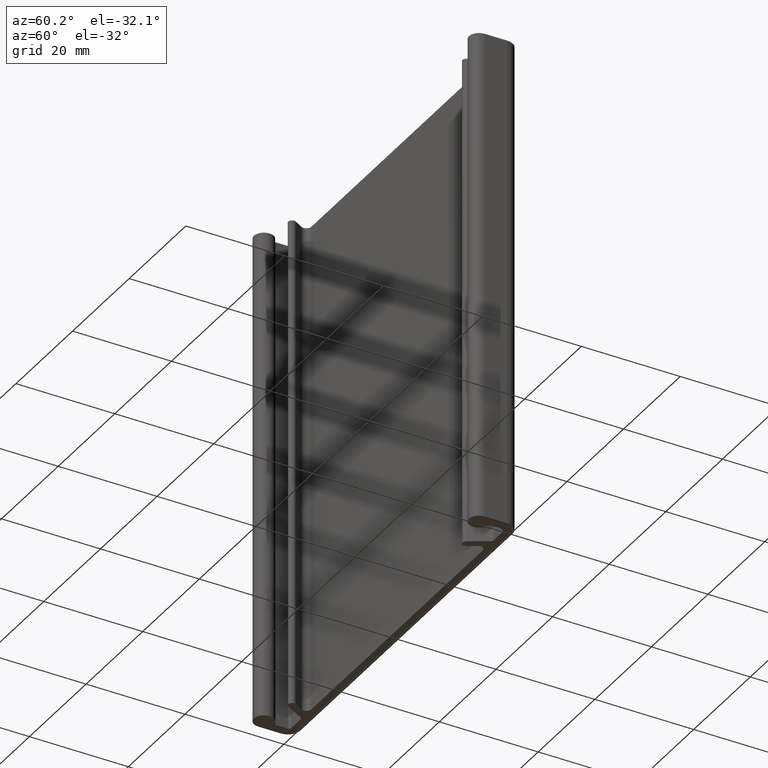
[diagram: clean part render]
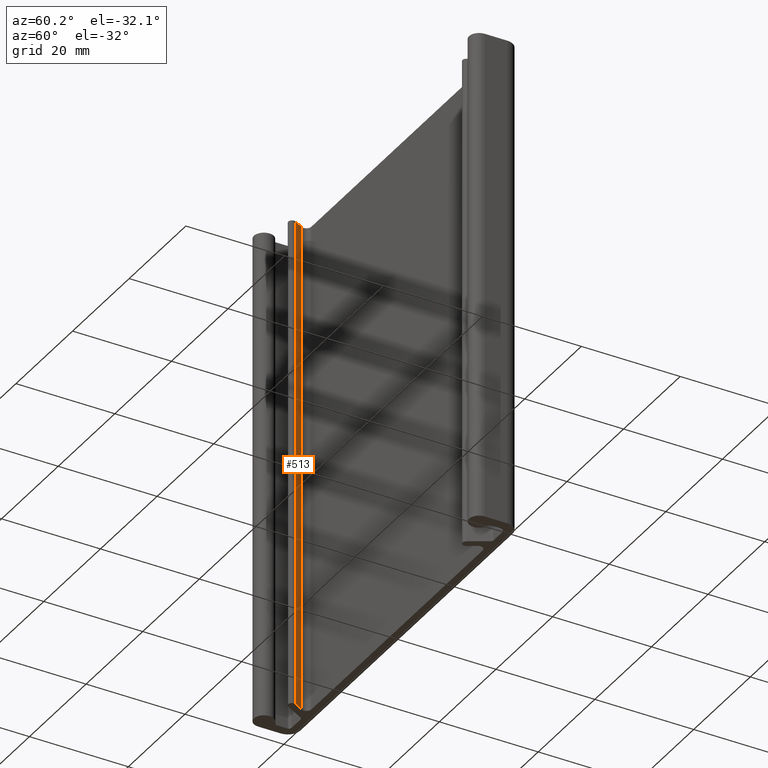
[diagram: same view with one face highlighted and labeled with its STEP entity id]
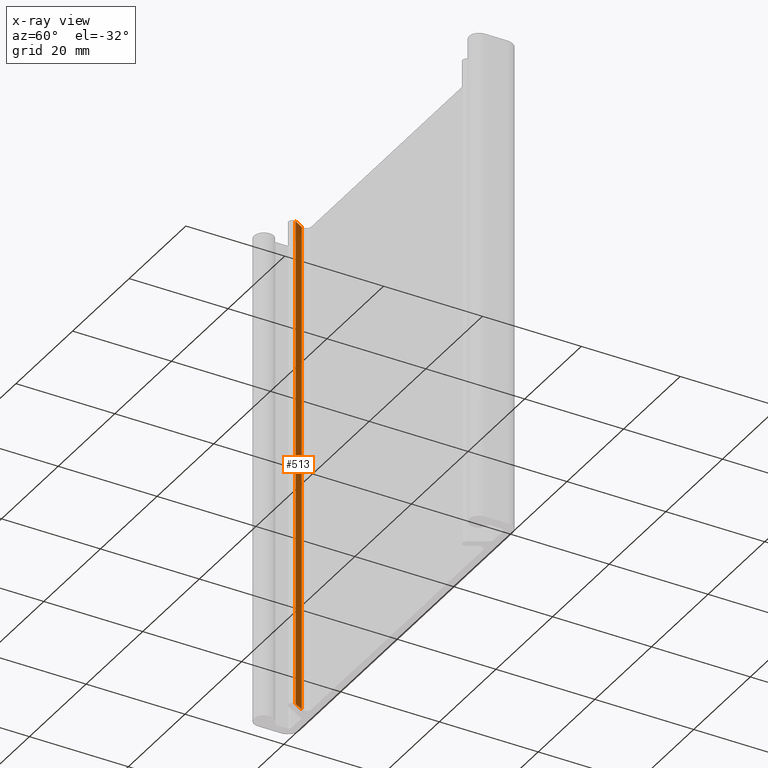
[diagram: x-ray of the same camera — body ghosted, the highlighted face saturated]
A machine part, auxiliary view. The second image highlights one B-rep face of the part: STEP entity #513.
The next image is the same camera in x-ray: the body ghosted, the highlighted face saturated — about 0% of this face is hidden behind the body in this view.
In plain terms, the highlighted planar face has unit normal (0.866, 0.5, 0).
Its self-contained STEP definition (entity closure, byte-faithful):
#57=FACE_OUTER_BOUND('',#85,.T.);
#85=EDGE_LOOP('',(#343,#344,#345,#346));
#113=LINE('',#788,#163);
#114=LINE('',#790,#164);
#115=LINE('',#792,#165);
#116=LINE('',#793,#166);
#163=VECTOR('',#624,10.);
#164=VECTOR('',#625,10.);
#165=VECTOR('',#626,10.);
#166=VECTOR('',#627,10.);
#213=VERTEX_POINT('',#786);
#214=VERTEX_POINT('',#787);
#215=VERTEX_POINT('',#789);
#216=VERTEX_POINT('',#791);
#265=EDGE_CURVE('',#213,#214,#113,.T.);
#266=EDGE_CURVE('',#214,#215,#114,.T.);
#267=EDGE_CURVE('',#216,#215,#115,.T.);
#268=EDGE_CURVE('',#213,#216,#116,.T.);
#343=ORIENTED_EDGE('',*,*,#265,.T.);
#344=ORIENTED_EDGE('',*,*,#266,.T.);
#345=ORIENTED_EDGE('',*,*,#267,.F.);
#346=ORIENTED_EDGE('',*,*,#268,.F.);
#499=PLANE('',#564);
#513=ADVANCED_FACE('',(#57),#499,.T.);
#564=AXIS2_PLACEMENT_3D('',#785,#622,#623);
#622=DIRECTION('center_axis',(0.866025403784374,0.500000000000112,0.));
#623=DIRECTION('ref_axis',(-0.500000000000112,0.866025403784374,0.));
#624=DIRECTION('',(-0.500000000000112,0.866025403784374,0.));
#625=DIRECTION('',(0.,0.,1.));
#626=DIRECTION('',(-0.500000000000112,0.866025403784374,0.));
#627=DIRECTION('',(0.,0.,1.));
#785=CARTESIAN_POINT('Origin',(-30.1245006475746,-3.2500000000006,0.));
#786=CARTESIAN_POINT('',(-30.1245006475746,-3.2500000000006,0.));
#787=CARTESIAN_POINT('',(-31.1348636186569,-1.5000000000003,0.));
#788=CARTESIAN_POINT('',(-30.1245006475746,-3.2500000000006,0.));
#789=CARTESIAN_POINT('',(-31.1348636186569,-1.5000000000003,100.));
#790=CARTESIAN_POINT('',(-31.1348636186569,-1.5000000000003,0.));
#791=CARTESIAN_POINT('',(-30.1245006475746,-3.2500000000006,100.));
#792=CARTESIAN_POINT('',(-30.1245006475746,-3.2500000000006,100.));
#793=CARTESIAN_POINT('',(-30.1245006475746,-3.2500000000006,0.));